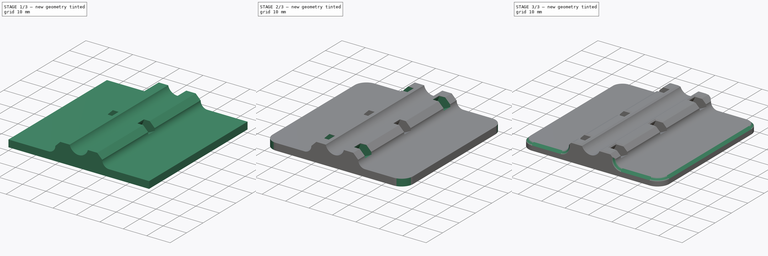
[diagram: build sequence overview — one tinted view per stage of 3, left to right]
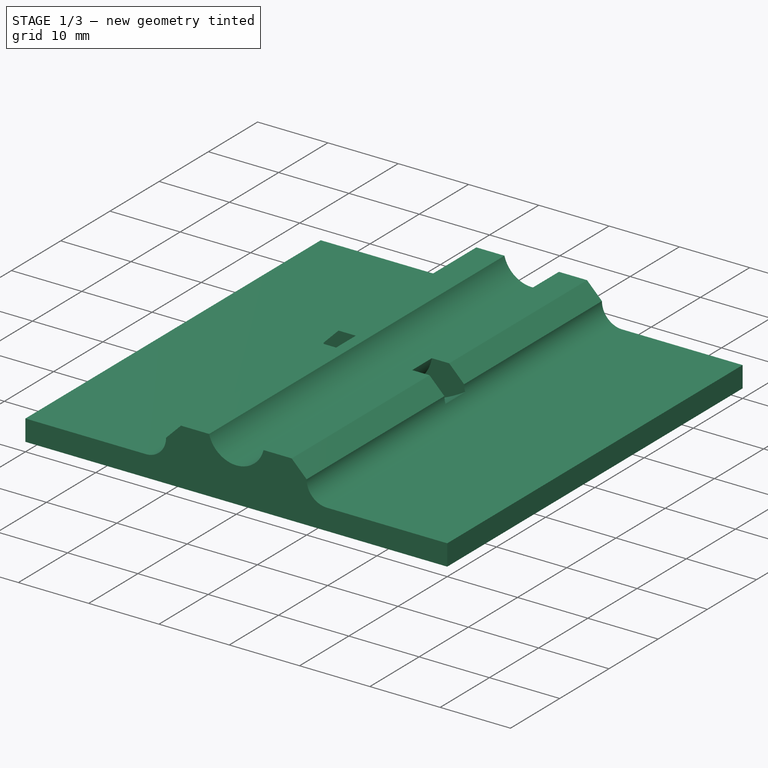
[diagram: stage 1 of 3 — iso view after this stage's code; geometry added in this stage tinted green]
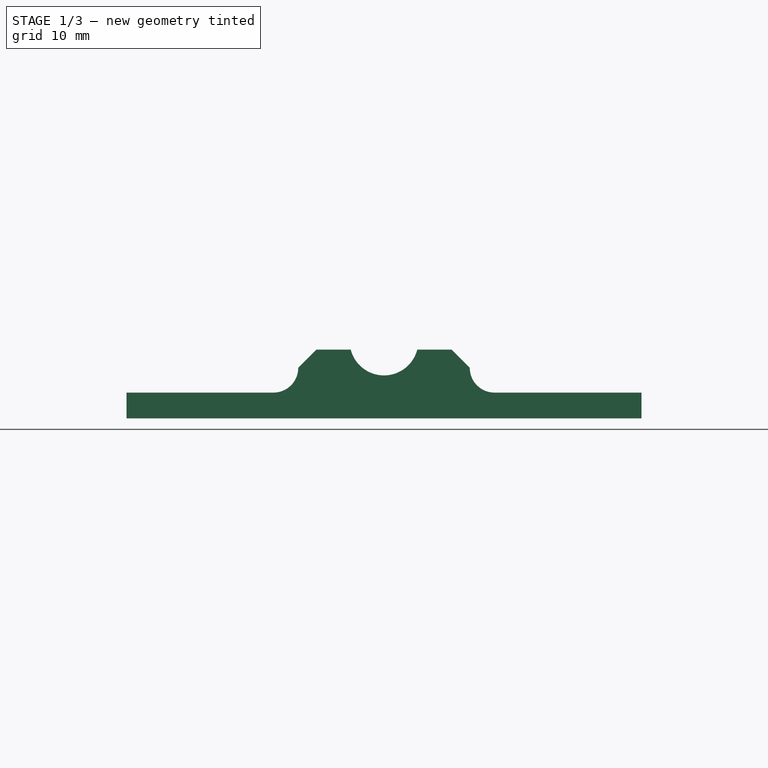
[diagram: stage 1 of 3 — front view after this stage's code; geometry added in this stage tinted green]
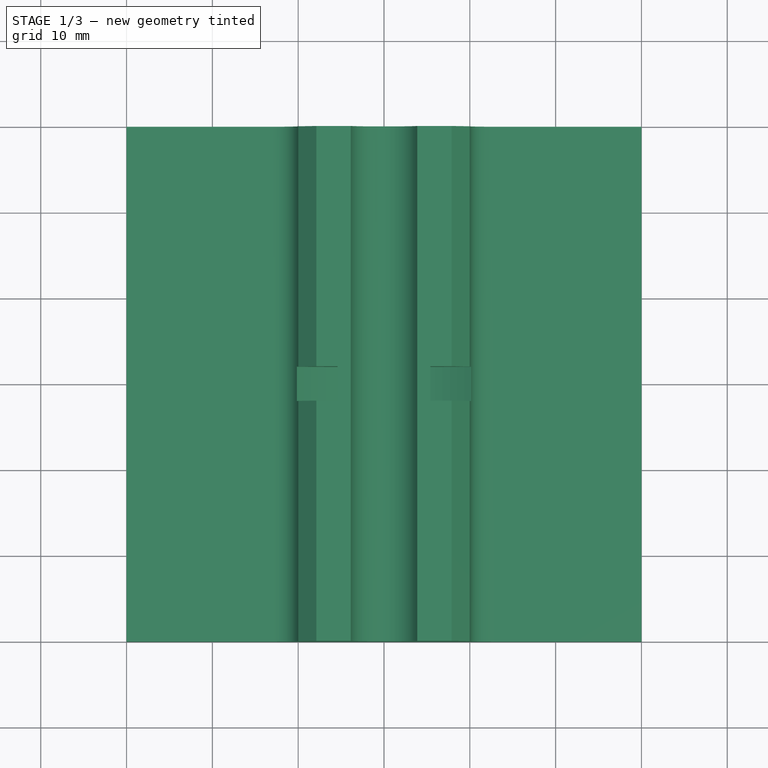
[diagram: stage 1 of 3 — top view after this stage's code; geometry added in this stage tinted green]
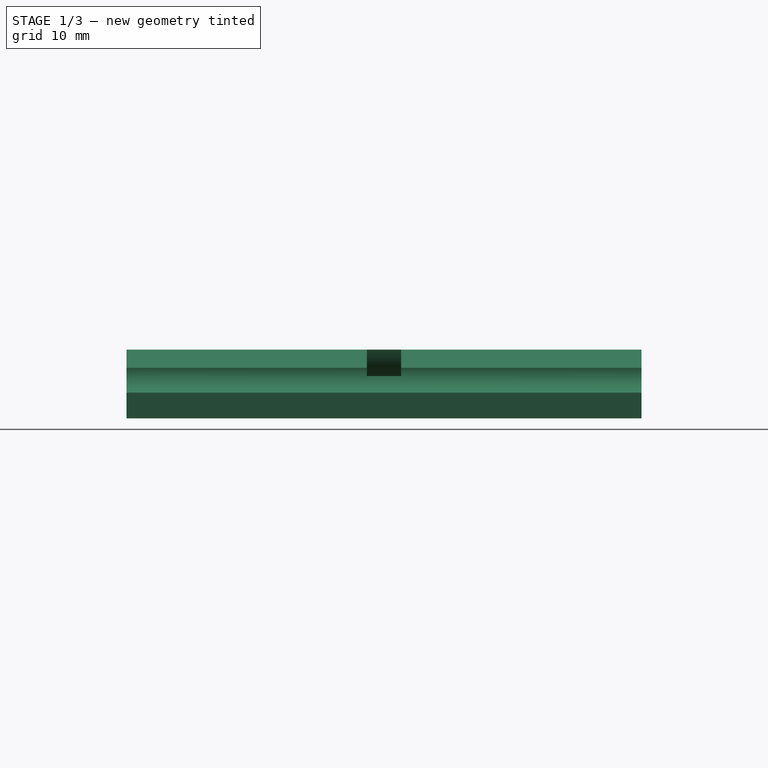
[diagram: stage 1 of 3 — right view after this stage's code; geometry added in this stage tinted green]
FCSTD DOCUMENT  (FreeCAD 0.21R33771 (Git))
Label: 20240218a_netzstecker_beschriftung
License: All rights reserved
LicenseURL: http://en.wikipedia.org/wiki/All_rights_reserved
objects: Sketcher::SketchObject×2, PartDesign::LinearPattern×2, PartDesign::Chamfer×2, PartDesign::Pad×1, PartDesign::Pocket×1, PartDesign::Fillet×1, PartDesign::Body×1
note: 15 computed .brp shape members not serialized (recipe doc carries the construction recipe); baked Part::Feature solids carry a one-line shape summary decoded from their .brp

FEATURE [Sketcher::SketchObject] Sketch
  FullyConstrained = true
  MapMode = 5
  Placement = pos=(0,0,0) rot=(1,0,0;1.5708rad)
  Support = -> [XZ_Plane]
  sketch-geometry (17):
    g0: ArcOfCircle CenterX=0 CenterY=6 CenterZ=0 NormalX=0 NormalY=0 NormalZ=1 AngleXU=0 Radius=4 StartAngle=3.39427 EndAngle=6.03051
    g1: LineSegment StartX=3.87298 StartY=5 StartZ=0 EndX=7.87298 EndY=5 EndZ=0
    g2: LineSegment StartX=7.87298 StartY=5 StartZ=0 EndX=9.9943 EndY=2.87868 EndZ=0
    g3: LineSegment StartX=-3.87298 StartY=5 StartZ=0 EndX=-7.87298 EndY=5 EndZ=0
    g4: LineSegment StartX=-7.87298 StartY=5 StartZ=0 EndX=-9.9943 EndY=2.87868 EndZ=0
    g5: LineSegment StartX=-3.87298 StartY=5 StartZ=0 EndX=3.87298 EndY=5 EndZ=0
    g6: ArcOfCircle CenterX=12.873 CenterY=2.87868 CenterZ=0 NormalX=0 NormalY=0 NormalZ=1 AngleXU=0 Radius=2.87868 StartAngle=3.14159 EndAngle=4.71239
    g7: ArcOfCircle CenterX=-12.873 CenterY=2.87868 CenterZ=0 NormalX=0 NormalY=0 NormalZ=1 AngleXU=0 Radius=2.87868 StartAngle=4.71239 EndAngle=6.28319
    g8: LineSegment StartX=12.873 StartY=2.87868 StartZ=0 EndX=12.873 EndY=0 EndZ=0
    g9: LineSegment StartX=-12.873 StartY=2.87868 StartZ=0 EndX=-12.873 EndY=0 EndZ=0
    g10: LineSegment StartX=-9.9943 StartY=2.87868 StartZ=0 EndX=-12.873 EndY=2.87868 EndZ=0
    g11: LineSegment StartX=9.9943 StartY=2.87868 StartZ=0 EndX=12.873 EndY=2.87868 EndZ=0
    g12: LineSegment StartX=-12.873 StartY=0 StartZ=0 EndX=-30 EndY=2.1e-15 EndZ=0
    g13: LineSegment StartX=-30 StartY=2.1e-15 StartZ=0 EndX=-30 EndY=-3 EndZ=0
    g14: LineSegment StartX=-30 StartY=-3 StartZ=0 EndX=30 EndY=-3 EndZ=0
    g15: LineSegment StartX=30 StartY=-3 StartZ=0 EndX=30 EndY=0 EndZ=0
    g16: LineSegment StartX=30 StartY=0 StartZ=0 EndX=12.873 EndY=0 EndZ=0
  constraints (48):
    c: Coincident(g0,g1)
    c: Coincident(g1,g2)
    c: Coincident(g3,g4)
    c: Coincident(g0,g3)
    c: Horizontal(g3)
    c: Coincident(g5,g0)
    c: Coincident(g5,g0)
    c: Horizontal(g5)
    c: Horizontal(g1)
    c: Equal(g1,g3)
    c: Angle(g4) = -2.35619
    c: Angle(g2) = -0.785398
    c: Equal(g4,g2)
    c: DistanceY(g0,g0) = 1
    c: Radius(g0) = 4
    c: DistanceX(g1,g1) = 4
    c: Distance(g2) = 3
    c: Coincident(g7,g4)
    c: Coincident(g2,g6)
    c: Coincident(g8,g6)
    c: Coincident(g8,g6)
    c: Vertical(g8)
    c: Coincident(g9,g7)
    c: Coincident(g9,g7)
    c: Coincident(g10,g4)
    c: Coincident(g10,g7)
    c: Coincident(g11,g2)
    c: Coincident(g11,g6)
    c: Horizontal(g11)
    c: PointOnObject(g6,g-1)
    c: PointOnObject(g7,g-1)
    c: Vertical(g9)
    c: Horizontal(g10)
    c: DistanceY(g0) = 6  'zentrumhoehe'
    c: Tangent(g7,g12) = 1.5708
    c: Coincident(g12,g13)
    c: Vertical(g13)
    c: Coincident(g13,g14)
    c: Horizontal(g14)
    c: Coincident(g14,g15)
    c: PointOnObject(g15,g-1)
    c: Vertical(g15)
    c: Coincident(g16,g15)
    c: Coincident(g6,g16)
    c: Equal(g12,g16)
    c: DistanceY(g15,g15) = 3
    c: DistanceX(g13,g14) = 60
    c: PointOnObject(g0,g-2)
FEATURE [PartDesign::Pad] Pad
  Direction = (0,-1,-2e-16)
  Length = 60
  Length2 = 10
  Midplane = true
  Placement = pos=(0,0,0) rot=(1,0,0;1.5708rad)
  Profile = -> Sketch
  ReferenceAxis = -> Sketch [N_Axis]
  Type = 0
FEATURE [Sketcher::SketchObject] Sketch001
  FullyConstrained = false
  MapMode = 5
  Placement = pos=(0,0,0) rot=(1,0,0;1.5708rad)
  Support = -> [XZ_Plane]
  sketch-geometry (3):
    g0: Circle CenterX=0 CenterY=6 CenterZ=0 NormalX=0 NormalY=0 NormalZ=1 AngleXU=0 Radius=5.5
    g1: Circle CenterX=0 CenterY=18 CenterZ=0 NormalX=0 NormalY=0 NormalZ=1 AngleXU=0 Radius=19
    g2: LineSegment StartX=0 StartY=18 StartZ=0 EndX=0 EndY=-1 EndZ=0
  constraints (7):
    c: Diameter(g0) = 11
    c: PointOnObject(g1,g-2)
    c: DistanceY(g1) = 18
    c: Coincident(g2,g1)
    c: PointOnObject(g2,g1)
    c: PointOnObject(g2,g-2)
    c: DistanceY(g2) = -1
FEATURE [PartDesign::Pocket] Pocket
  BaseFeature = -> Pad
  Direction = (0,1,2e-16)
  Length = 4
  Length2 = 5
  Midplane = true
  Placement = pos=(0,0,0) rot=(1,0,0;1.5708rad)
  Profile = -> Sketch001
  ReferenceAxis = -> Sketch001 [N_Axis]
  Type = 0
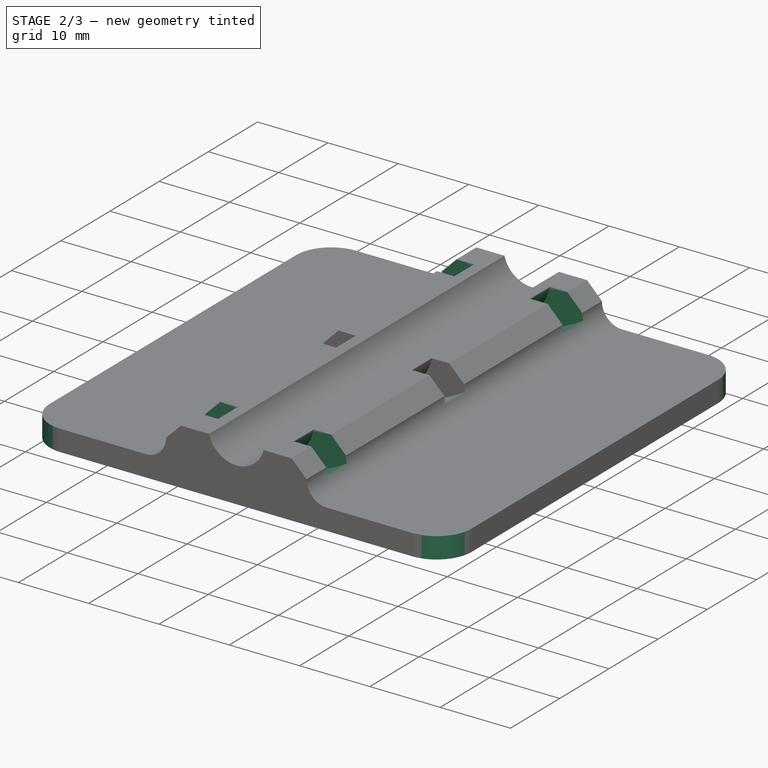
[diagram: stage 2 of 3 — iso view after this stage's code; geometry added in this stage tinted green]
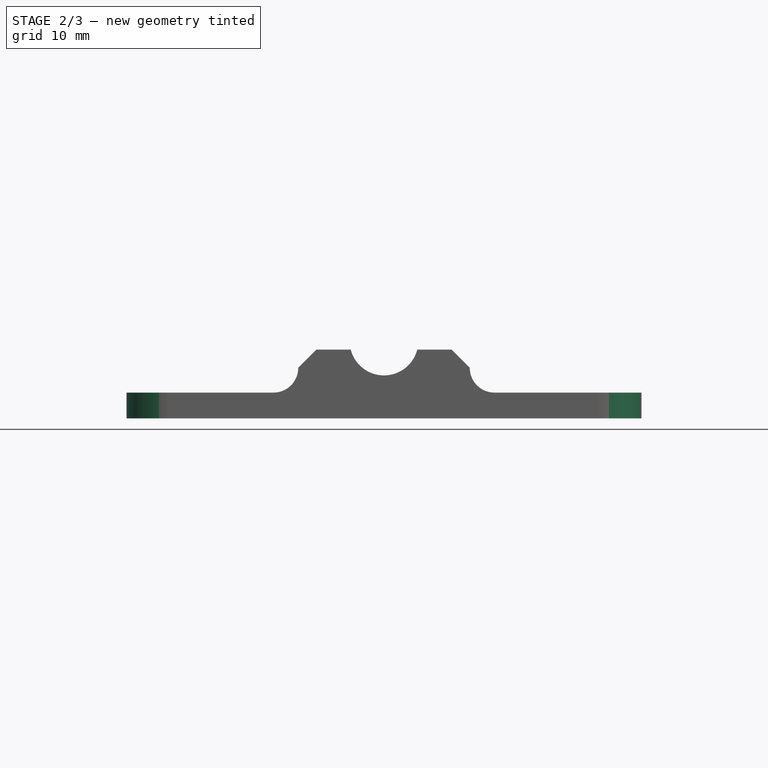
[diagram: stage 2 of 3 — front view after this stage's code; geometry added in this stage tinted green]
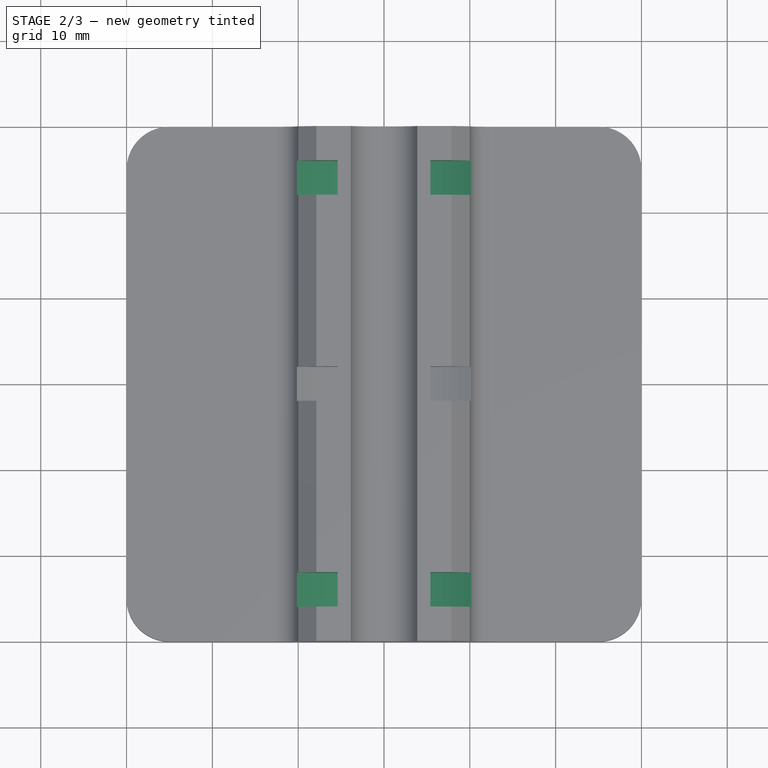
[diagram: stage 2 of 3 — top view after this stage's code; geometry added in this stage tinted green]
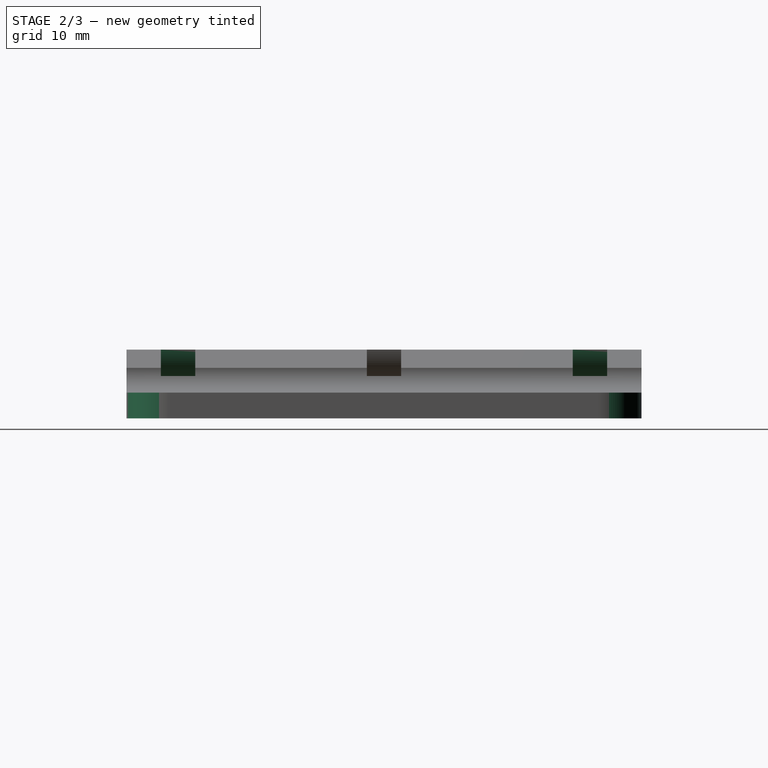
[diagram: stage 2 of 3 — right view after this stage's code; geometry added in this stage tinted green]
FEATURE [PartDesign::LinearPattern] LinearPattern
  BaseFeature = -> Pocket
  Direction = -> Sketch001 [N_Axis]
  Length = 24
  Occurrences = 2
  Originals = -> [Pocket]
  Placement = pos=(0,0,0) rot=(1,0,0;1.5708rad)
FEATURE [PartDesign::LinearPattern] LinearPattern001
  BaseFeature = -> LinearPattern
  Direction = -> Sketch001 [N_Axis]
  Length = 24
  Occurrences = 2
  Originals = -> [Pocket]
  Placement = pos=(0,0,0) rot=(1,0,0;1.5708rad)
  Reversed = true
FEATURE [PartDesign::Fillet] Fillet
  Base = -> LinearPattern001 [Edge47,Edge38,Edge49,Edge40]
  BaseFeature = -> LinearPattern001
  Placement = pos=(0,0,0) rot=(1,0,0;1.5708rad)
  Radius = 5
  SupportTransform = false
  UseAllEdges = false
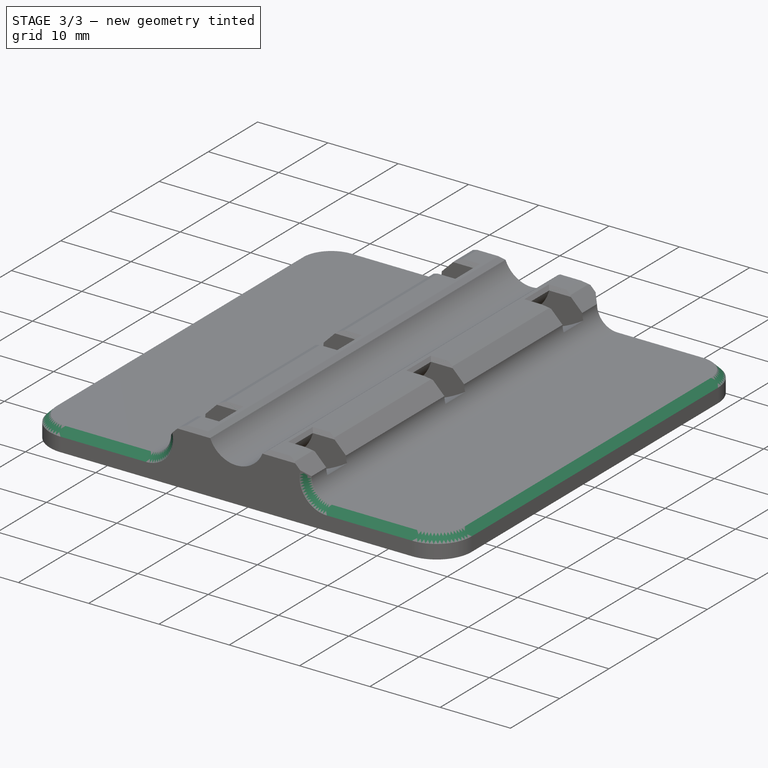
[diagram: stage 3 of 3 — iso view after this stage's code; geometry added in this stage tinted green]
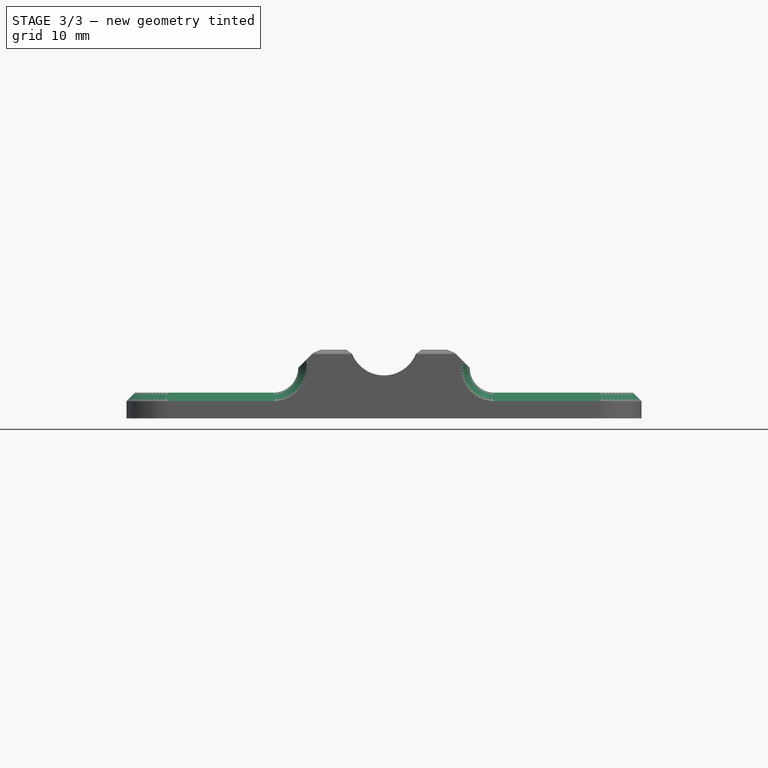
[diagram: stage 3 of 3 — front view after this stage's code; geometry added in this stage tinted green]
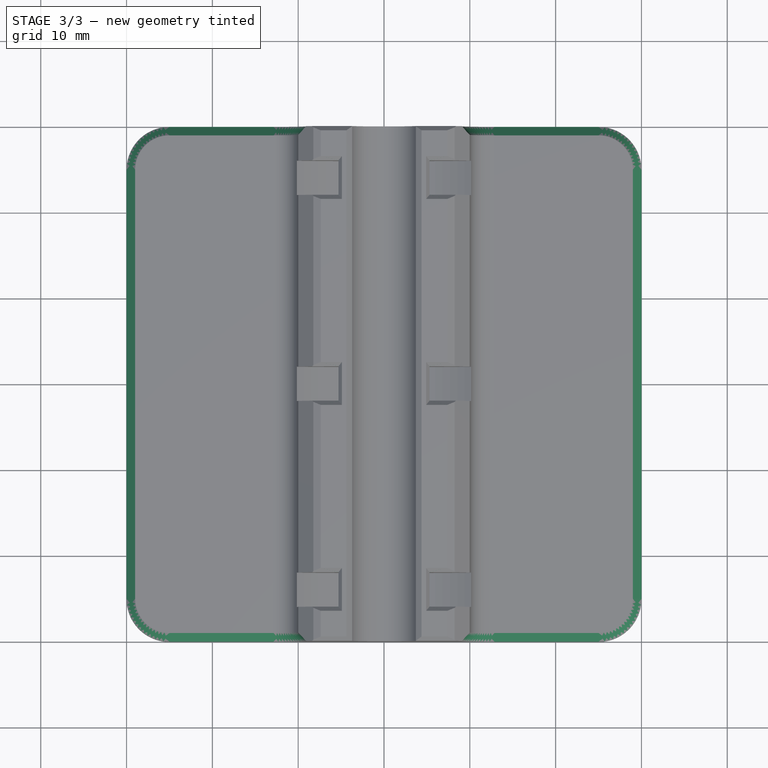
[diagram: stage 3 of 3 — top view after this stage's code; geometry added in this stage tinted green]
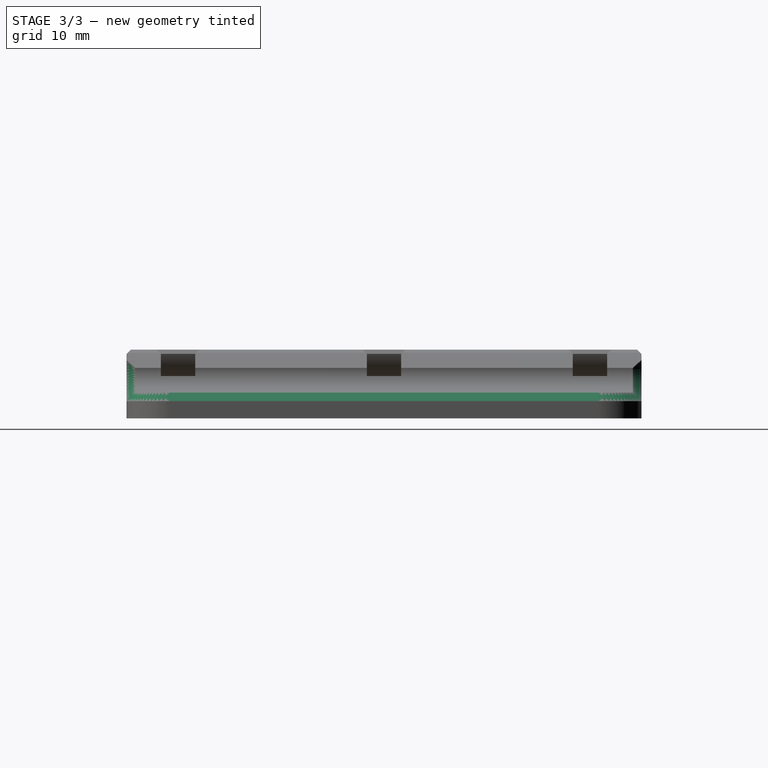
[diagram: stage 3 of 3 — right view after this stage's code; geometry added in this stage tinted green]
FEATURE [PartDesign::Chamfer] Chamfer
  Angle = 45
  Base = -> Fillet [Face12,Face8]
  BaseFeature = -> Fillet
  ChamferType = 0
  FlipDirection = false
  Placement = pos=(0,0,0) rot=(1,0,0;1.5708rad)
  Size = 0.5
  Size2 = 1
  SupportTransform = false
  UseAllEdges = false
FEATURE [PartDesign::Chamfer] Chamfer001
  Angle = 45
  Base = -> Chamfer [Edge45,Edge80]
  BaseFeature = -> Chamfer
  ChamferType = 0
  FlipDirection = false
  Placement = pos=(0,0,0) rot=(1,0,0;1.5708rad)
  Size = 1
  Size2 = 1
  SupportTransform = false
  UseAllEdges = false
FEATURE [PartDesign::Body] Body  label="halter"
  Group = -> [Sketch,Pad,Sketch001,Pocket,LinearPattern,LinearPattern001,Fillet,Chamfer,Chamfer001]
  Origin = -> Origin
  Tip = -> Chamfer001
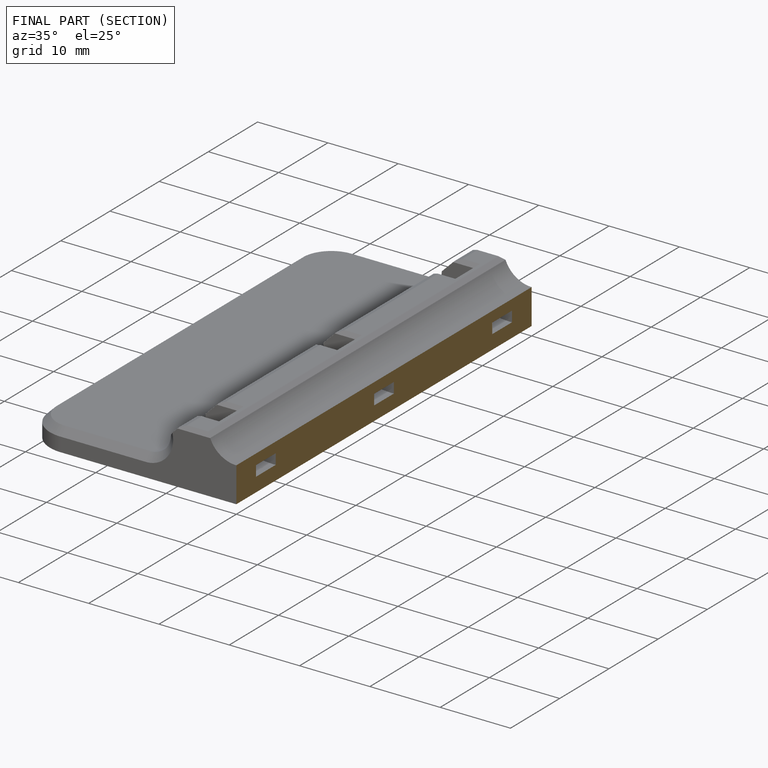
[diagram: finished part — half-section view (interior)]
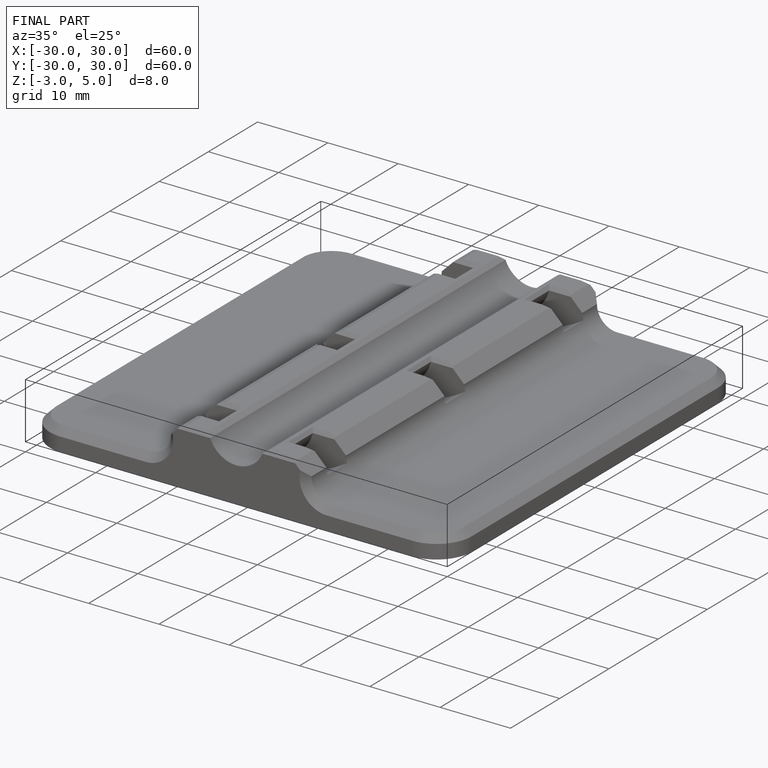
[diagram: finished part — iso view with bounding-box wireframe]
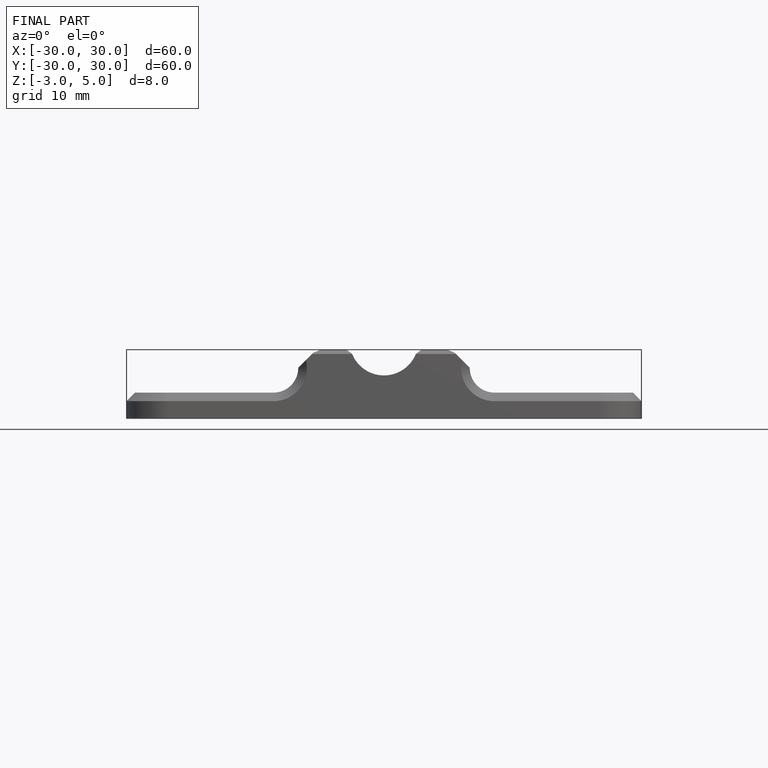
[diagram: finished part — front view with bounding-box wireframe]
